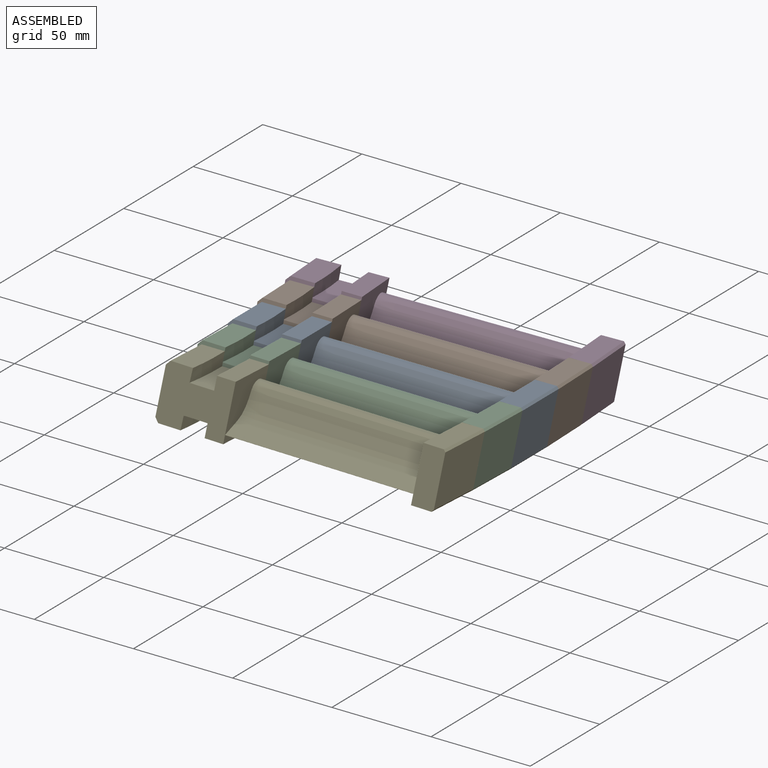
[diagram: assembled view]
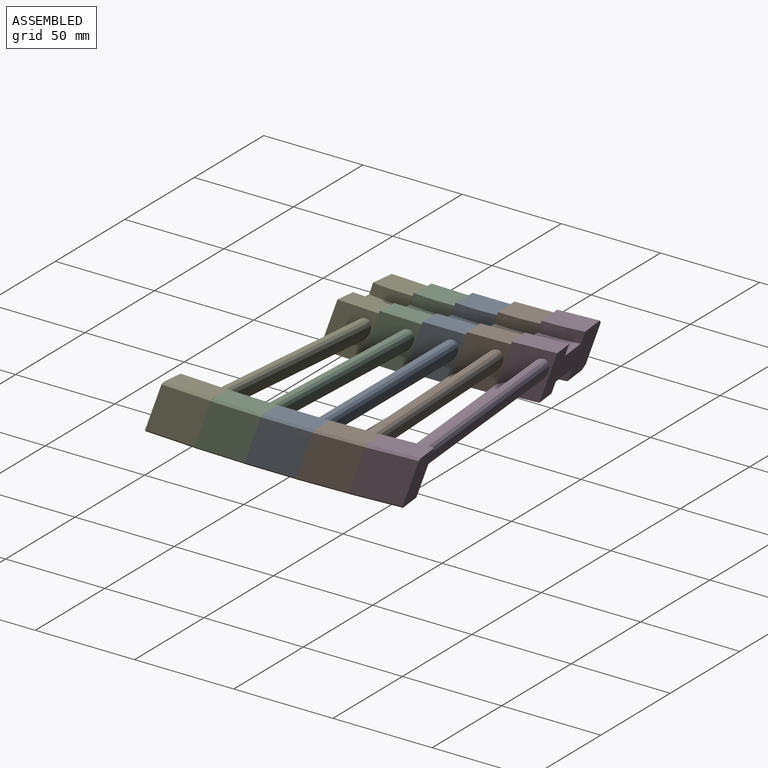
[diagram: assembled view, second angle]
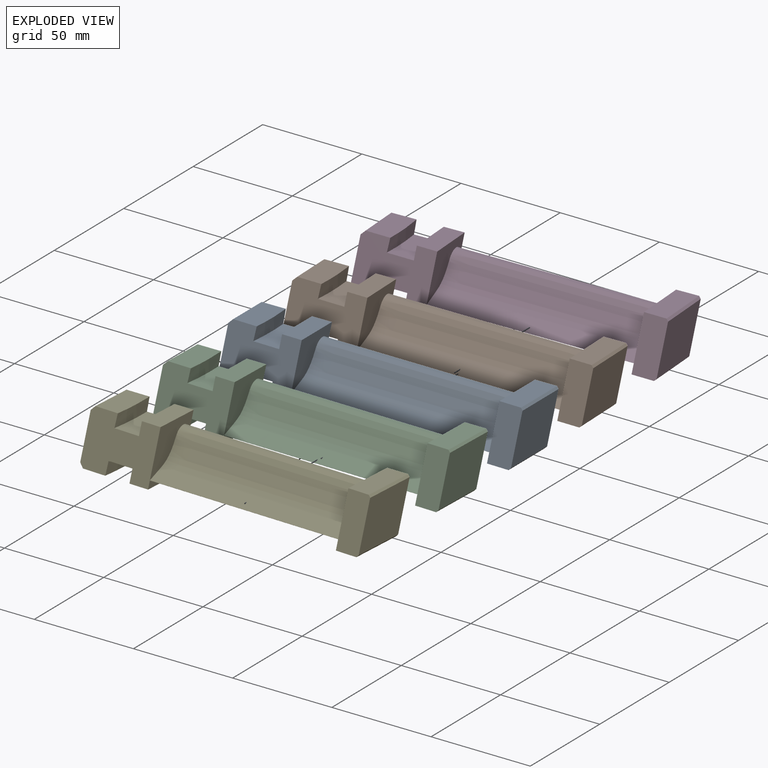
[diagram: exploded view]
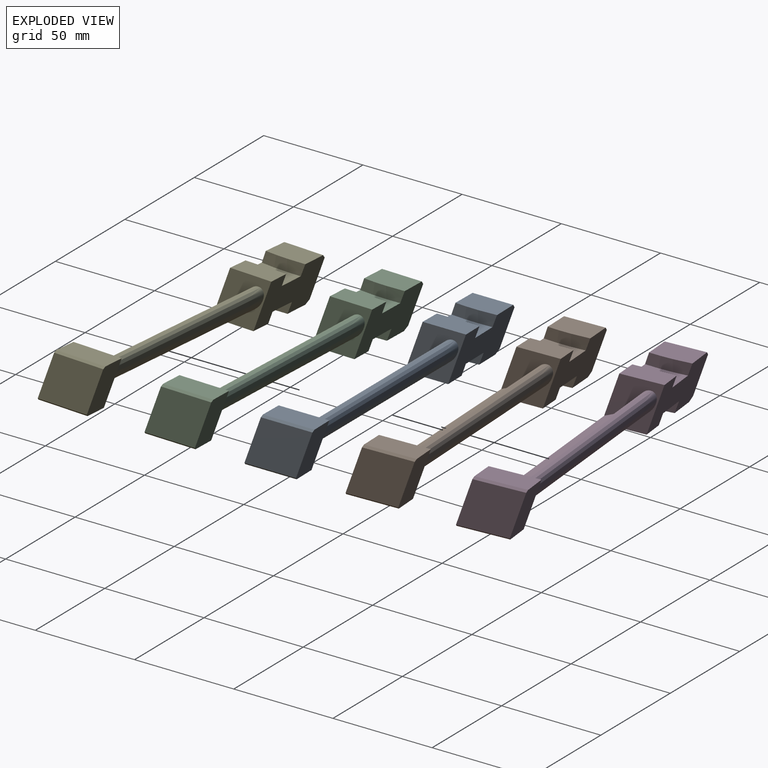
[diagram: exploded view, second angle]
ASSEMBLY  parts=5 mates=4
PART A: 28 faces, bbox 150x35x25 mm
  f0: plane 20.97x12.71mm, normal (0,0,1), area 256.2mm2, adj f13,f20,f24,f26
  f1: plane 20.95x12.5mm, normal (0,0,-1), area 255.9mm2, adj f11,f19,f24,f26
  f2: plane 25.96x11mm, normal (0,0,1), area 283.3mm2, adj f4,f6,f25,f27
  f3: plane 25.96x11mm, normal (0,0,-1), area 283.3mm2, adj f5,f6,f25,f27
  f4: plane 26.34x1mm, normal (0.71,0,0.71), area 36.7mm2, adj f2,f22,f25,f27
  f5: plane 26.34x1mm, normal (0.71,0,-0.71), area 36.7mm2, adj f3,f22,f25,f27
  f6: plane 34.55x25mm, normal (-1,0,0), area 515.5mm2, adj f2,f3,f23,f25,f27
  f7: plane 21.81x10mm, normal (0,0,-1), area 216.2mm2, adj f8,f17,f24,f26
  f8: plane 23.6x6mm, normal (-1,0,0), area 128.6mm2, adj f7,f9,f24,f26
  f9: plane 21.44x12mm, normal (0,0,-1), area 254.6mm2, adj f8,f10,f24,f26
  f10: plane 21.03x0.1mm, normal (1,0,0), area 2mm2, adj f9,f18,f24,f26
  f11: plane 21.19x2mm, normal (-0.71,0,-0.71), area 57.9mm2, adj f1,f12,f24,f26
  f12: plane 27.99x21mm, normal (-1,0,0), area 429.1mm2, adj f11,f13,f24,f26
  f13: plane 21.19x2mm, normal (-0.71,0,0.71), area 57.9mm2, adj f0,f12,f24,f26
  f14: plane 21.46x12.02mm, normal (0,0,1), area 254.6mm2, adj f15,f21,f24,f26
  f15: plane 23.6x6mm, normal (-1,0,0), area 128.6mm2, adj f14,f16,f24,f26
  f16: plane 21.81x10mm, normal (0,0,1), area 216.2mm2, adj f15,f17,f24,f26
  f17: plane 30.81x25mm, normal (1,0,0), area 421.8mm2, adj f7,f16,f23,f24,f26
  f18: plane 20.99x1.2mm, normal (0,0,-1), area 14.4mm2, adj f10,f19,f24,f26
  f19: cone r=114.49mm half-angle=0.1deg, axis (0,0,-1), area 123.9mm2, adj f1,f18,f24,f26
  f20: cylinder r=114.51mm len=23.11mm, axis (0,0,-1), area 125.7mm2, adj f0,f21,f24,f26
  f21: plane 21.01x1.21mm, normal (0,0,1), area 14mm2, adj f14,f20,f24,f26
  f22: plane 34.28x23mm, normal (1,0,0), area 598mm2, adj f4,f5,f25,f27
  f23: extruded ~101x25.57mm, area 6500mm2, adj f6,f17
  f24: plane 37x25mm, normal (-0.02,-0.94,0.34), area 813.3mm2, adj f0,f1,f7,f8,f9,f10,f11,f12
  f25: plane 25x12mm, normal (-0.02,-0.94,0.34), area 317.8mm2, adj f2,f3,f4,f5,f6,f22
  f26: plane 37x25mm, normal (-0.02,0.94,-0.34), area 813.8mm2, adj f0,f1,f7,f8,f9,f10,f11,f12
  f27: plane 25x12mm, normal (-0.02,0.94,-0.34), area 317.8mm2, adj f2,f3,f4,f5,f6,f22
PART B: same geometry as A
PART C: same geometry as A
PART D: same geometry as A
PART E: same geometry as A
PLACE A at identity
PLACE B rot(axis=(0,0.34,0.94),2deg) t=(0.09,21.05,1.7)mm
PLACE C rot(axis=(0,-0.34,-0.94),2deg) t=(-0.76,-21.03,-1.71)mm
PLACE D rot(axis=(0,0.34,0.94),4deg) t=(-0.49,42.09,3.41)mm
PLACE E rot(axis=(0,-0.34,-0.94),4deg) t=(-2.19,-42.03,-3.43)mm
MATE fastened B.f25 <-> A.f27  axis (0.02,-0.94,0.34) through (143.98,30.39,12.5)mm
MATE fastened E.f27 <-> C.f25  axis (0.05,0.94,-0.34) through (143.13,-21.15,12.49)mm
MATE fastened C.f27 <-> A.f25  axis (0.02,0.94,-0.34) through (143.98,4.61,12.5)mm
MATE fastened D.f25 <-> B.f27  axis (0.05,-0.94,0.34) through (143.13,56.15,12.51)mm
